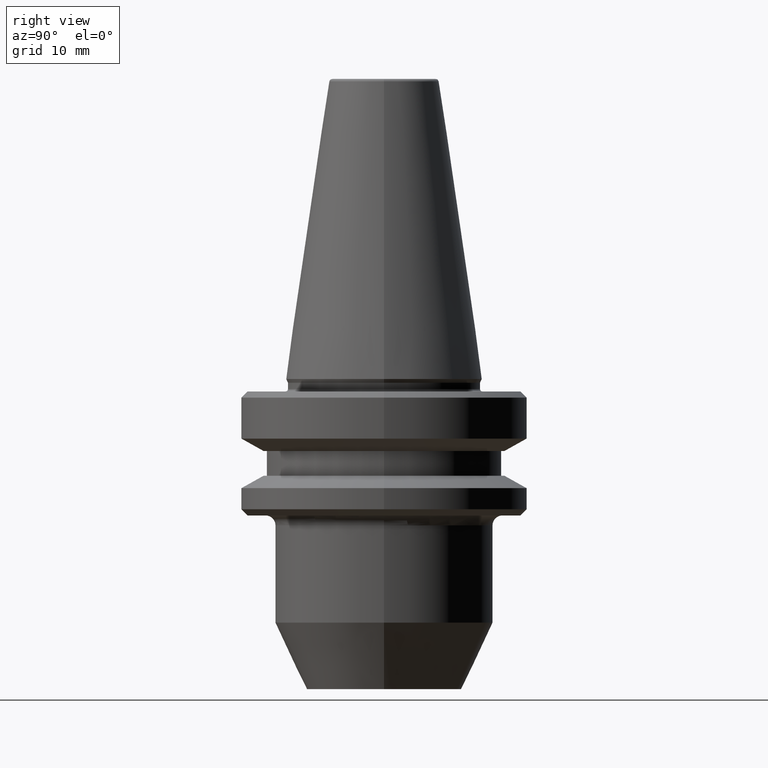
[diagram: clean part render]
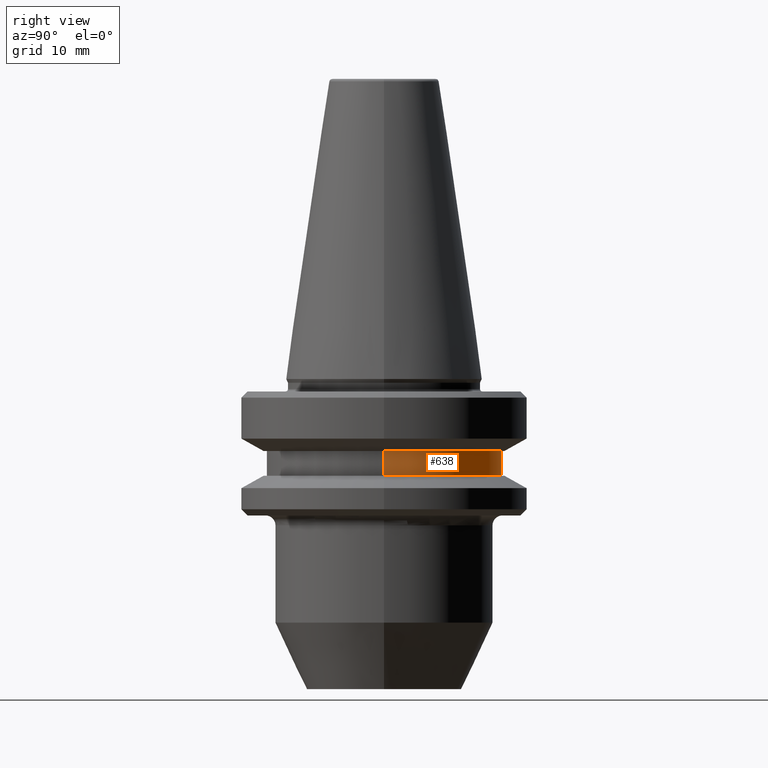
[diagram: same view with one face highlighted and labeled with its STEP entity id]
A machine part, right view. The second image highlights one B-rep face of the part: STEP entity #638.
In plain terms, the highlighted cylindrical surface (partial cylindrical patch) has radius 19 mm, axis along (-0, -0, 1).
Its self-contained STEP definition (entity closure, byte-faithful):
#17 = CYLINDRICAL_SURFACE ( 'NONE', #887, 19.00000000000034800 ) ;
#159 = DIRECTION ( 'NONE',  ( -0.0000000000000000000, -0.0000000000000000000, 1.000000000000000000 ) ) ;
#169 = FACE_OUTER_BOUND ( 'NONE', #933, .T. ) ;
#171 = CIRCLE ( 'NONE', #226, 19.00000000000034800 ) ;
#209 = VERTEX_POINT ( 'NONE', #395 ) ;
#226 = AXIS2_PLACEMENT_3D ( 'NONE', #482, #537, #240 ) ;
#234 = EDGE_CURVE ( 'NONE', #497, #734, #956, .T. ) ;
#240 = DIRECTION ( 'NONE',  ( 1.000000000000000000, 0.0000000000000000000, 0.0000000000000000000 ) ) ;
#254 = DIRECTION ( 'NONE',  ( -0.0000000000000000000, -0.0000000000000000000, 1.000000000000000000 ) ) ;
#274 = DIRECTION ( 'NONE',  ( 1.000000000000000000, 0.0000000000000000000, 0.0000000000000000000 ) ) ;
#280 = EDGE_CURVE ( 'NONE', #497, #209, #171, .T. ) ;
#291 = CARTESIAN_POINT ( 'NONE',  ( 19.00000000000034800, 0.0000000000000000000, -11.59999999999938900 ) ) ;
#292 = CARTESIAN_POINT ( 'NONE',  ( -19.00000000000034800, 2.326828918380014000E-015, -11.59999999999938900 ) ) ;
#303 = VERTEX_POINT ( 'NONE', #292 ) ;
#317 = ORIENTED_EDGE ( 'NONE', *, *, #234, .F. ) ;
#353 = ORIENTED_EDGE ( 'NONE', *, *, #280, .T. ) ;
#376 = VECTOR ( 'NONE', #254, 1000.000000000000000 ) ;
#393 = VECTOR ( 'NONE', #405, 1000.000000000000000 ) ;
#395 = CARTESIAN_POINT ( 'NONE',  ( -19.00000000000034800, 2.326828918380014000E-015, -15.59999999999983600 ) ) ;
#405 = DIRECTION ( 'NONE',  ( -0.0000000000000000000, -0.0000000000000000000, 1.000000000000000000 ) ) ;
#427 = EDGE_CURVE ( 'NONE', #209, #303, #575, .T. ) ;
#482 = CARTESIAN_POINT ( 'NONE',  ( 0.0000000000000000000, 0.0000000000000000000, -15.59999999999983600 ) ) ;
#497 = VERTEX_POINT ( 'NONE', #733 ) ;
#510 = CARTESIAN_POINT ( 'NONE',  ( -19.00000000000034800, 2.326828918380014000E-015, 106.7296997704041000 ) ) ;
#536 = CARTESIAN_POINT ( 'NONE',  ( 0.0000000000000000000, 0.0000000000000000000, -11.59999999999938900 ) ) ;
#537 = DIRECTION ( 'NONE',  ( -0.0000000000000000000, -0.0000000000000000000, 1.000000000000000000 ) ) ;
#561 = ORIENTED_EDGE ( 'NONE', *, *, #427, .T. ) ;
#575 = LINE ( 'NONE', #510, #376 ) ;
#609 = DIRECTION ( 'NONE',  ( 1.000000000000000000, 0.0000000000000000000, 0.0000000000000000000 ) ) ;
#638 = ADVANCED_FACE ( 'NONE', ( #169 ), #17, .T. ) ;
#653 = CIRCLE ( 'NONE', #674, 19.00000000000034800 ) ;
#674 = AXIS2_PLACEMENT_3D ( 'NONE', #536, #159, #609 ) ;
#733 = CARTESIAN_POINT ( 'NONE',  ( 19.00000000000034800, 0.0000000000000000000, -15.59999999999983600 ) ) ;
#734 = VERTEX_POINT ( 'NONE', #291 ) ;
#787 = CARTESIAN_POINT ( 'NONE',  ( 0.0000000000000000000, 0.0000000000000000000, 106.7296997704041000 ) ) ;
#815 = EDGE_CURVE ( 'NONE', #734, #303, #653, .T. ) ;
#840 = DIRECTION ( 'NONE',  ( -0.0000000000000000000, -0.0000000000000000000, 1.000000000000000000 ) ) ;
#848 = CARTESIAN_POINT ( 'NONE',  ( 19.00000000000034800, 0.0000000000000000000, 106.7296997704041000 ) ) ;
#857 = ORIENTED_EDGE ( 'NONE', *, *, #815, .F. ) ;
#887 = AXIS2_PLACEMENT_3D ( 'NONE', #787, #840, #274 ) ;
#933 = EDGE_LOOP ( 'NONE', ( #353, #561, #857, #317 ) ) ;
#956 = LINE ( 'NONE', #848, #393 ) ;